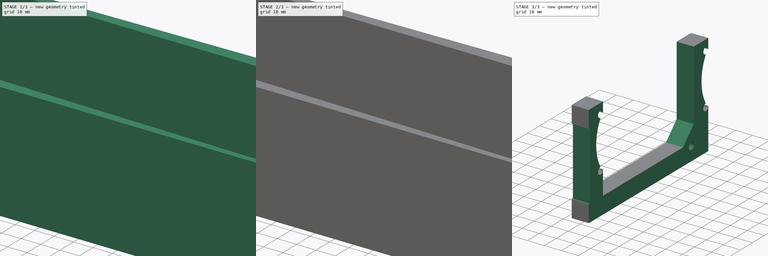
[diagram: build sequence overview — one tinted view per stage of 3, left to right]
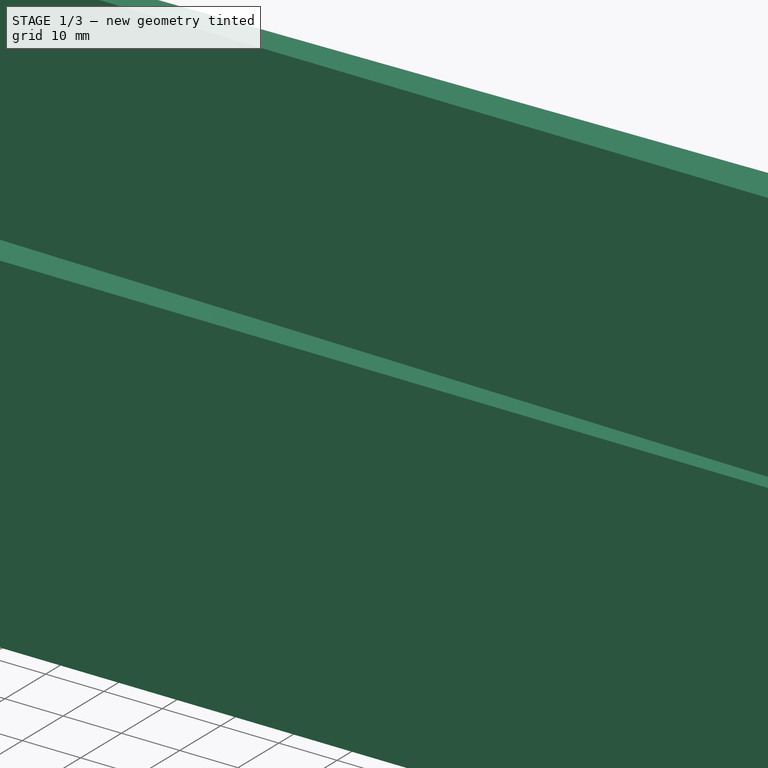
[diagram: stage 1 of 3 — iso view after this stage's code; geometry added in this stage tinted green]
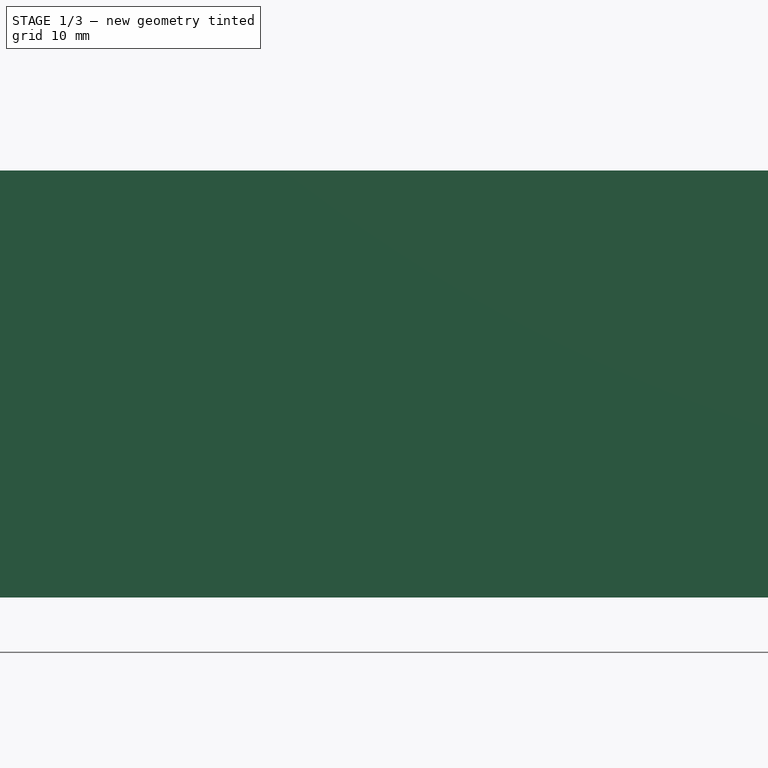
[diagram: stage 1 of 3 — front view after this stage's code; geometry added in this stage tinted green]
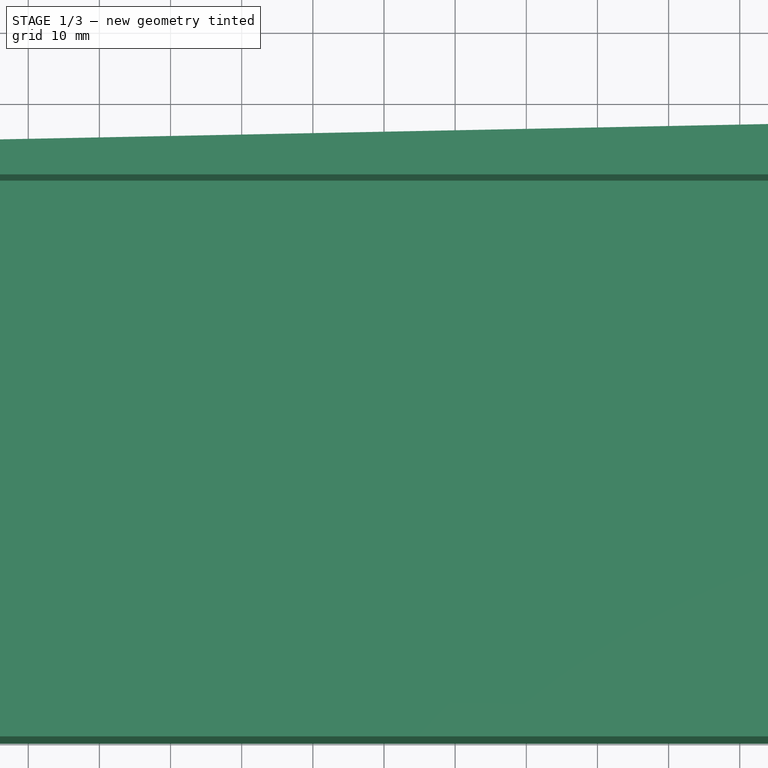
[diagram: stage 1 of 3 — top view after this stage's code; geometry added in this stage tinted green]
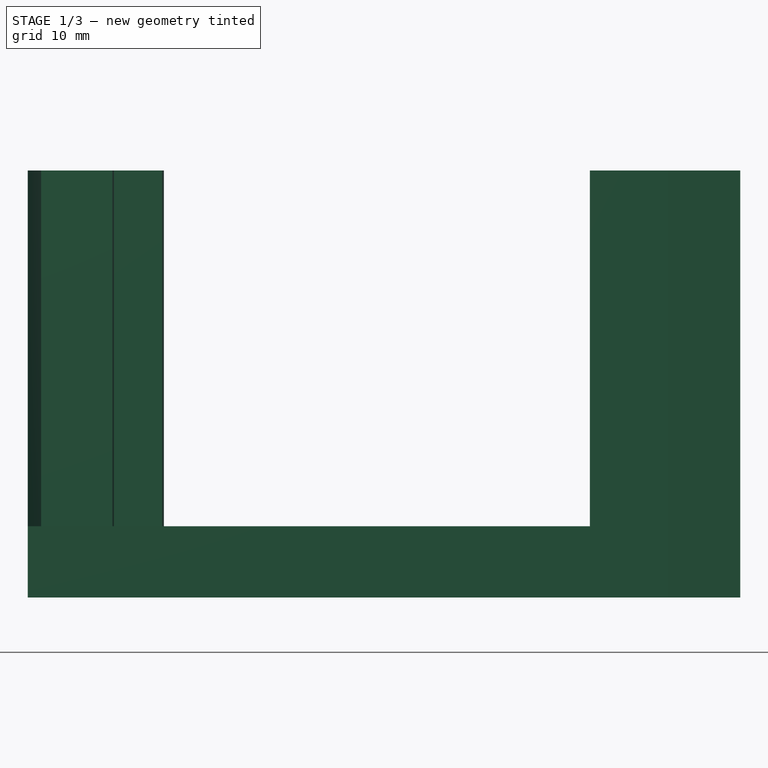
[diagram: stage 1 of 3 — right view after this stage's code; geometry added in this stage tinted green]
FCSTD DOCUMENT  (FreeCAD 0.19R)
Label: Support_Droit
License: All rights reserved
LicenseURL: http://en.wikipedia.org/wiki/All_rights_reserved
objects: Sketcher::SketchObject×6, PartDesign::Pocket×5, PartDesign::Pad×1, PartDesign::Body×1
note: 19 computed .brp shape members not serialized (recipe doc carries the construction recipe); baked Part::Feature solids carry a one-line shape summary decoded from their .brp

FEATURE [Sketcher::SketchObject] Sketch
  FullyConstrained = false
  MapMode = 5
  Support = -> [XY_Plane]
  sketch-geometry (14):
    g0: LineSegment StartX=450 StartY=0 StartZ=0 EndX=450 EndY=90 EndZ=0
    g1: LineSegment StartX=450 StartY=0 StartZ=0 EndX=-50 EndY=0 EndZ=0
    g2: LineSegment StartX=-50 StartY=80 StartZ=0 EndX=-50 EndY=0 EndZ=0
    g3: LineSegment StartX=-208.658 StartY=76.8268 StartZ=0 EndX=496.351 EndY=90.927 EndZ=0
    g4: LineSegment StartX=350 StartY=-44.981 StartZ=0 EndX=350 EndY=136.178 EndZ=0
    g5: LineSegment StartX=-6 StartY=80.88 StartZ=0 EndX=-6.24 EndY=92.88 EndZ=0
    g6: LineSegment StartX=-6.24 StartY=92.88 StartZ=0 EndX=5.76 EndY=93.12 EndZ=0
    g7: LineSegment StartX=5.76 StartY=93.12 StartZ=0 EndX=6 EndY=81.12 EndZ=0
    g8: LineSegment StartX=344 StartY=87.88 StartZ=0 EndX=343.76 EndY=99.88 EndZ=0
    g9: LineSegment StartX=343.76 StartY=99.88 StartZ=0 EndX=355.76 EndY=100.12 EndZ=0
    g10: LineSegment StartX=355.76 StartY=100.12 StartZ=0 EndX=356 EndY=88.12 EndZ=0
    g11: LineSegment StartX=-50 StartY=80 StartZ=0 EndX=-6 EndY=80.88 EndZ=0
    g12: LineSegment StartX=356 StartY=88.12 StartZ=0 EndX=450 EndY=90 EndZ=0
    g13: LineSegment StartX=344 StartY=87.88 StartZ=0 EndX=6 EndY=81.12 EndZ=0
  constraints (40):
    c: Vertical(g0)
    c: Coincident(g1,g0)
    c: PointOnObject(g1,g-1)
    c: Horizontal(g1)
    c: DistanceX(g1,g-1) = 50
    c: DistanceX(g1,g0) = 500
    c: Coincident(g2,g1)
    c: Vertical(g2)
    c: PointOnObject(g0,g3)
    c: PointOnObject(g2,g3)
    c: DistanceY(g0,g0) = 90
    c: DistanceY(g2,g2) = 80
    c: Vertical(g4)
    c: DistanceX(g-1,g4) = 350
    c: Coincident(g6,g5)
    c: Coincident(g7,g6)
    c: Coincident(g9,g8)
    c: Coincident(g10,g9)
    c: Coincident(g11,g2)
    c: Coincident(g12,g0)
    c: PointOnObject(g12,g3)
    c: Coincident(g13,g8)
    c: Coincident(g7,g13)
    c: Coincident(g11,g5)
    c: Coincident(g10,g12)
    c: PointOnObject(g8,g3)
    c: PointOnObject(g7,g3)
    c: PointOnObject(g5,g3)
    c: Parallel(g6,g9)
    c: Parallel(g9,g3)
    c: Perpendicular(g5,g11)
    c: Perpendicular(g13,g7)
    c: Perpendicular(g8,g13)
    c: Perpendicular(g12,g10)
    c: Equal(g6,g9)
    c: Equal(g9,g5)
    c: Equal(g5,g8)
    c: DistanceX(g6,g6) = 12
    c: DistanceX(g5,g-1) = 6
    c: DistanceX(g8,g4) = 6
FEATURE [PartDesign::Pad] Pad
  Direction = (1,1,1)
  Length = 60
  Length2 = 100
  Profile = -> Sketch
  Type = 0
FEATURE [Sketcher::SketchObject] Sketch001
  FullyConstrained = false
  MapMode = 5
  Placement = pos=(0,0,60) rot=(0,0,1;0rad)
  Support = -> [Pad]
  sketch-geometry (17):
    g0: LineSegment StartX=450 StartY=0 StartZ=0 EndX=-50 EndY=10 EndZ=0
    g1: LineSegment StartX=-50 StartY=10 StartZ=0 EndX=-50 EndY=79 EndZ=0
    g2: GeomPoint X=0 Y=79 Z=0
    g3: GeomPoint X=0 Y=9 Z=0
    g4: LineSegment StartX=350 StartY=158.708 StartZ=0 EndX=350 EndY=0 EndZ=0
    g5: GeomPoint X=350 Y=79.0004 Z=0
    g6: LineSegment StartX=-50 StartY=79 StartZ=0 EndX=450 EndY=79 EndZ=0
    g7: LineSegment StartX=-5.8 StartY=19.12 StartZ=0 EndX=6.2 EndY=18.88 EndZ=0
    g8: LineSegment StartX=344.2 StartY=12.12 StartZ=0 EndX=356.2 EndY=11.88 EndZ=0
    g9: LineSegment StartX=-5.8 StartY=19.12 StartZ=0 EndX=-6 EndY=9.12 EndZ=0
    g10: LineSegment StartX=6.2 StartY=18.88 StartZ=0 EndX=6 EndY=8.88 EndZ=0
    g11: LineSegment StartX=356.2 StartY=11.88 StartZ=0 EndX=356 EndY=1.88 EndZ=0
    g12: LineSegment StartX=-50 StartY=10 StartZ=0 EndX=-6 EndY=9.12 EndZ=0
    g13: LineSegment StartX=6 StartY=8.88 StartZ=0 EndX=344 EndY=2.12 EndZ=0
    g14: LineSegment StartX=356 StartY=1.88 StartZ=0 EndX=450 EndY=0 EndZ=0
    g15: LineSegment StartX=450 StartY=79 StartZ=0 EndX=450 EndY=0 EndZ=0
    g16: LineSegment StartX=344.2 StartY=12.12 StartZ=0 EndX=344 EndY=2.12 EndZ=0
  constraints (45):
    c: DistanceX(g0,g-1) = 50
    c: Coincident(g1,g0)
    c: Vertical(g1)
    c: PointOnObject(g2,g-2)
    c: PointOnObject(g3,g-2)
    c: PointOnObject(g3,g0)
    c: Vertical(g4)
    c: PointOnObject(g4,g-1)
    c: DistanceX(g-1,g4) = 350
    c: PointOnObject(g5,g4)
    c: Coincident(g6,g1)
    c: DistanceY(g-1,g1) = 10
    c: DistanceX(g-1,g0) = 450
    c: DistanceX(g6,g6) = 500
    c: Parallel(g0,g8)
    c: Parallel(g8,g7)
    c: Coincident(g12,g1)
    c: Coincident(g9,g12)
    c: Coincident(g7,g9)
    c: Coincident(g7,g10)
    c: Coincident(g10,g13)
    c: Perpendicular(g10,g7)
    c: Perpendicular(g7,g9)
    c: PointOnObject(g9,g0)
    c: PointOnObject(g10,g0)
    c: DistanceX(g9,g3) = 6
    c: DistanceX(g7,g7) = 12
    c: DistanceY(g9,g7) = 10
    c: Coincident(g8,g11)
    c: Perpendicular(g8,g11,g8) = 4.71239
    c: Equal(g7,g8)
    c: DistanceX(g13,g4) = 6
    c: PointOnObject(g13,g0)
    c: Coincident(g11,g14)
    c: PointOnObject(g11,g0)
    c: Coincident(g14,g0)
    c: Coincident(g15,g6)
    c: Coincident(g15,g14)
    c: PointOnObject(g14,g-1)
    c: Coincident(g16,g8)
    c: Coincident(g16,g13)
    c: Perpendicular(g8,g16)
    c: Equal(g16,g9)
    c: DistanceY(g1,g1) = 69
    c: Horizontal(g6)
FEATURE [PartDesign::Pocket] Pocket
  BaseFeature = -> Pad
  Length = 50
  Length2 = 100
  Profile = -> Sketch001
  Type = 0
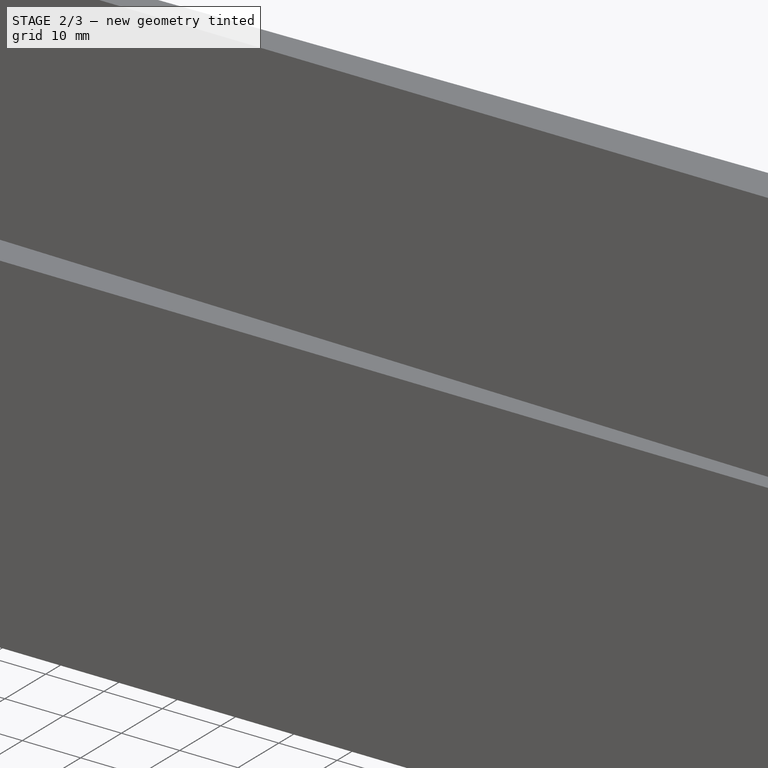
[diagram: stage 2 of 3 — iso view after this stage's code; geometry added in this stage tinted green]
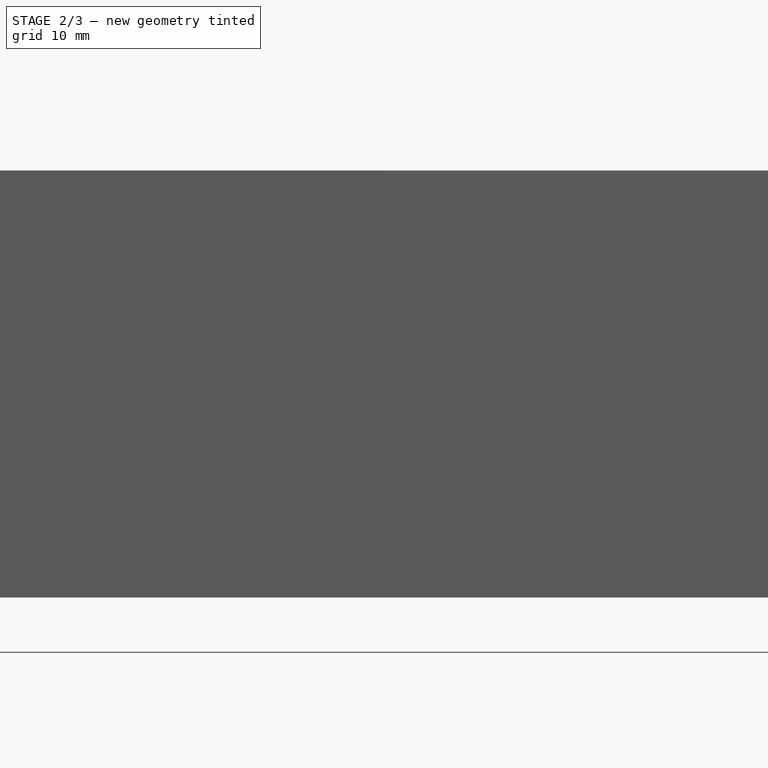
[diagram: stage 2 of 3 — front view after this stage's code; geometry added in this stage tinted green]
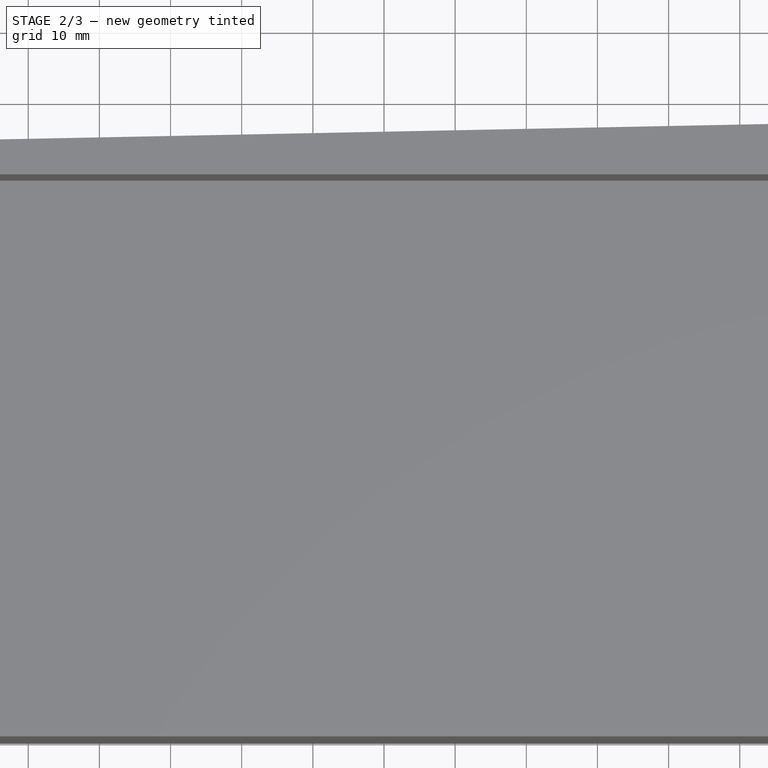
[diagram: stage 2 of 3 — top view after this stage's code; geometry added in this stage tinted green]
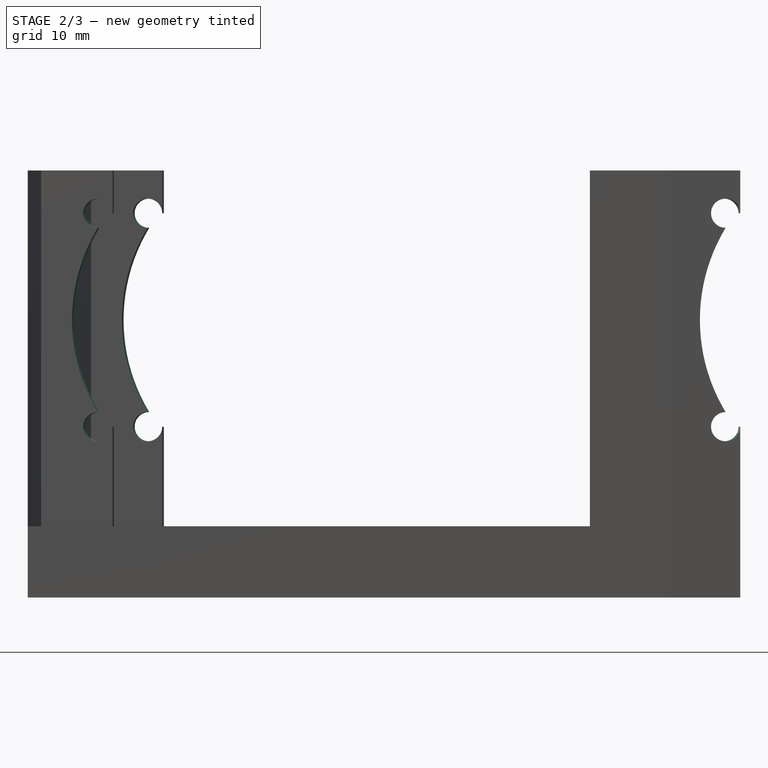
[diagram: stage 2 of 3 — right view after this stage's code; geometry added in this stage tinted green]
FEATURE [Sketcher::SketchObject] Sketch002
  ExternalGeometry = -> [Pocket]
  FullyConstrained = true
  MapMode = 5
  Placement = pos=(355.82,-7.1164,0) rot=(0.585047,0.573463,0.573463;2.08289rad)
  Support = -> [Pocket]
  sketch-geometry (4):
    g0: ArcOfCircle CenterX=16.9502 CenterY=54 CenterZ=0 NormalX=0 NormalY=0 NormalZ=1 AngleXU=0 Radius=2.05 StartAngle=0 EndAngle=4.71239
    g1: ArcOfCircle CenterX=16.9502 CenterY=24 CenterZ=0 NormalX=0 NormalY=0 NormalZ=1 AngleXU=0 Radius=2.05 StartAngle=1.5708 EndAngle=6.28319
    g2: LineSegment StartX=19.0002 StartY=24 StartZ=0 EndX=19.0002 EndY=54 EndZ=0
    g3: ArcOfCircle CenterX=38.3347 CenterY=39 CenterZ=0 NormalX=0 NormalY=0 NormalZ=1 AngleXU=0 Radius=25 StartAngle=2.59708 EndAngle=3.6861
  constraints (15):
    c: PointOnObject(g1,g-3)
    c: Horizontal(g1,g1)
    c: Horizontal(g0,g0)
    c: Coincident(g2,g1)
    c: Coincident(g0,g2)
    c: PointOnObject(g0,g-3)
    c: Coincident(g3,g1)
    c: Coincident(g3,g0)
    c: Vertical(g1,g1)
    c: Vertical(g1,g0)
    c: Vertical(g0,g0)
    c: Diameter(g0) = 4.1
    c: DistanceY(g1,g0) = 30
    c: DistanceY(g-1,g0) = 54
    c: Diameter(g3) = 50
FEATURE [PartDesign::Pocket] Pocket001
  BaseFeature = -> Pocket
  Length = 5
  Length2 = 100
  Profile = -> Sketch002
  Type = 1
FEATURE [Sketcher::SketchObject] Sketch003
  FullyConstrained = false
  MapMode = 5
  Placement = pos=(357.619,7.15239,0) rot=(0.569653,0.58116,0.58116;2.10598rad)
  Support = -> [Pocket001]
  sketch-geometry (4):
    g0: ArcOfCircle CenterX=90.9362 CenterY=54 CenterZ=0 NormalX=0 NormalY=0 NormalZ=1 AngleXU=0 Radius=2.05 StartAngle=1.6e-15 EndAngle=4.71239
    g1: ArcOfCircle CenterX=90.9362 CenterY=24 CenterZ=0 NormalX=0 NormalY=0 NormalZ=1 AngleXU=0 Radius=2.05 StartAngle=1.5708 EndAngle=6.28319
    g2: LineSegment StartX=92.9862 StartY=24 StartZ=0 EndX=92.9862 EndY=54 EndZ=0
    g3: ArcOfCircle CenterX=112.321 CenterY=39 CenterZ=0 NormalX=0 NormalY=0 NormalZ=1 AngleXU=0 Radius=25 StartAngle=2.59708 EndAngle=3.6861
  constraints (15):
    c: PointOnObject(g0,g-3)
    c: PointOnObject(g1,g-3)
    c: Coincident(g2,g1)
    c: Coincident(g2,g0)
    c: Vertical(g0,g0)
    c: Vertical(g0,g1)
    c: Vertical(g1,g1)
    c: Horizontal(g0,g0)
    c: Horizontal(g1,g1)
    c: DistanceY(g1,g0) = 30
    c: Diameter(g0) = 4.1
    c: DistanceY(g-1,g0) = 54
    c: Coincident(g3,g0)
    c: Coincident(g3,g1)
    c: Diameter(g3) = 50
FEATURE [PartDesign::Pocket] Pocket002
  BaseFeature = -> Pocket001
  Length = 5
  Length2 = 100
  Profile = -> Sketch003
  Type = 1
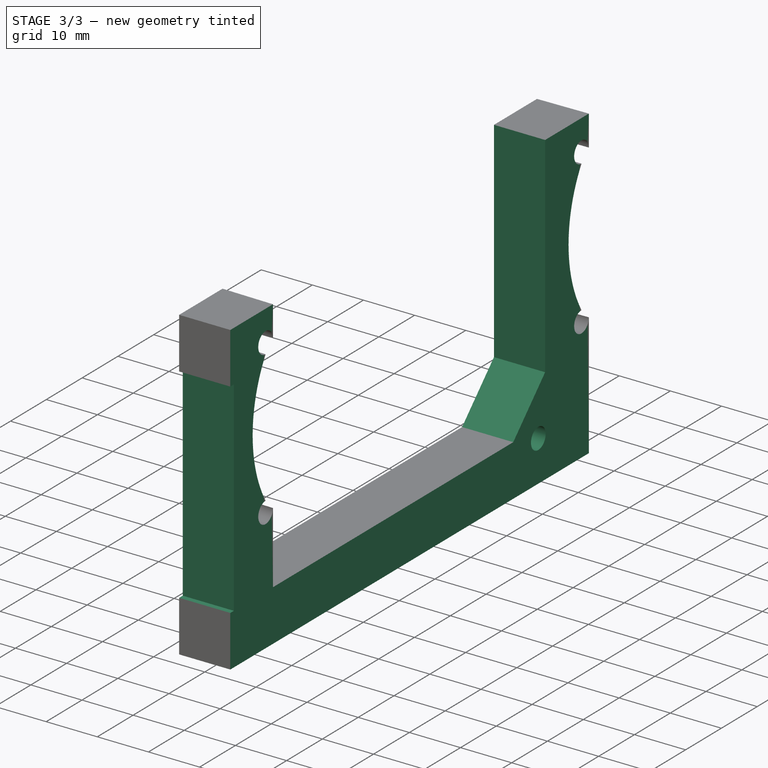
[diagram: stage 3 of 3 — iso view after this stage's code; geometry added in this stage tinted green]
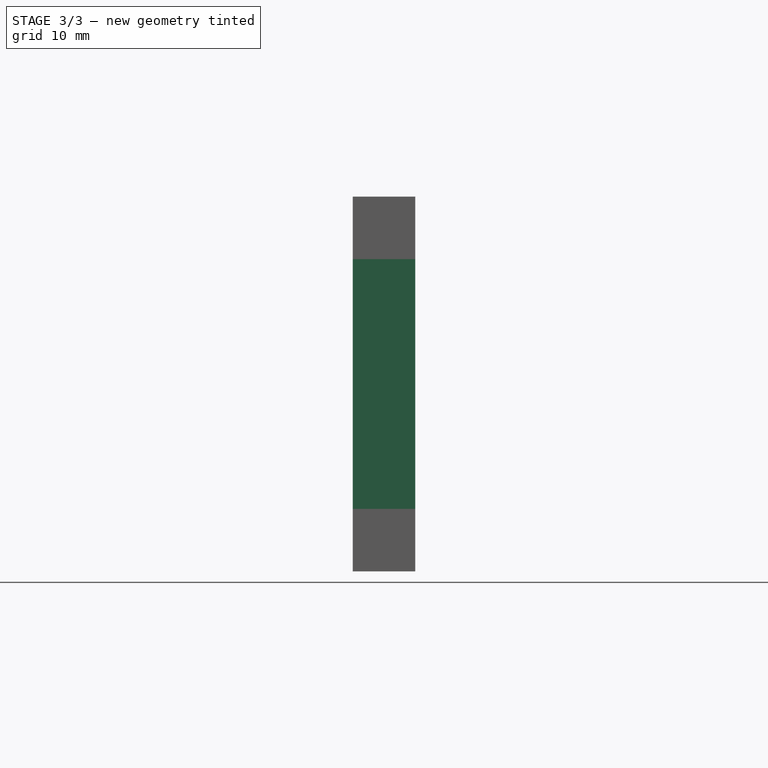
[diagram: stage 3 of 3 — front view after this stage's code; geometry added in this stage tinted green]
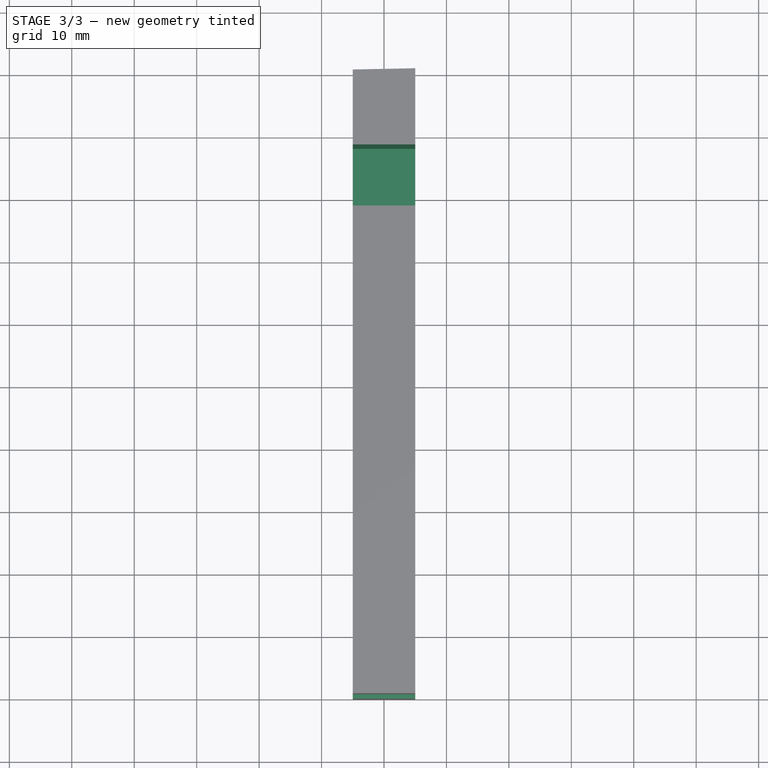
[diagram: stage 3 of 3 — top view after this stage's code; geometry added in this stage tinted green]
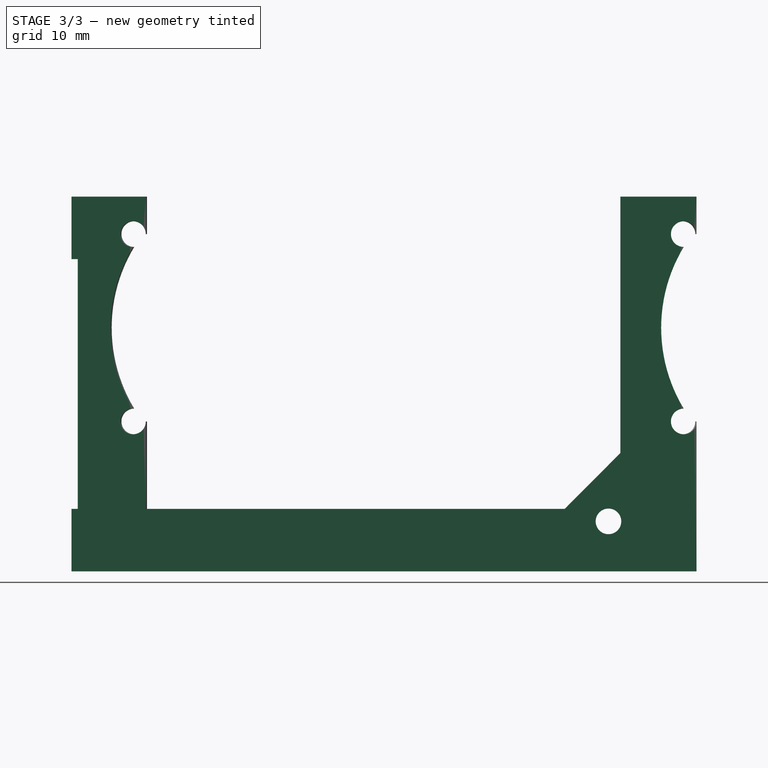
[diagram: stage 3 of 3 — right view after this stage's code; geometry added in this stage tinted green]
FEATURE [Sketcher::SketchObject] Sketch004
  FullyConstrained = false
  MapMode = 5
  Placement = pos=(0,0,60) rot=(0,0,1;0rad)
  Support = -> [Pocket002]
  sketch-geometry (9):
    g0: LineSegment StartX=-117.917 StartY=125.965 StartZ=0 EndX=345 EndY=125.965 EndZ=0
    g1: LineSegment StartX=345 StartY=125.965 StartZ=0 EndX=345 EndY=-26.5674 EndZ=0
    g2: LineSegment StartX=345 StartY=-26.5674 StartZ=0 EndX=-117.917 EndY=-26.5674 EndZ=0
    g3: LineSegment StartX=-117.917 StartY=-26.5674 StartZ=0 EndX=-117.917 EndY=125.965 EndZ=0
    g4: LineSegment StartX=355 StartY=128.273 StartZ=0 EndX=561.43 EndY=128.273 EndZ=0
    g5: LineSegment StartX=561.43 StartY=128.273 StartZ=0 EndX=561.43 EndY=-13.8747 EndZ=0
    g6: LineSegment StartX=561.43 StartY=-13.8747 StartZ=0 EndX=355 EndY=-13.8747 EndZ=0
    g7: LineSegment StartX=355 StartY=-13.8747 StartZ=0 EndX=355 EndY=128.273 EndZ=0
    g8: LineSegment StartX=350 StartY=-39.9056 StartZ=0 EndX=350 EndY=173.274 EndZ=0
  constraints (20):
    c: Coincident(g0,g1)
    c: Coincident(g1,g2)
    c: Coincident(g2,g3)
    c: Coincident(g3,g0)
    c: Horizontal(g0)
    c: Horizontal(g2)
    c: Vertical(g1)
    c: Vertical(g3)
    c: Coincident(g4,g5)
    c: Coincident(g5,g6)
    c: Coincident(g6,g7)
    c: Coincident(g7,g4)
    c: Horizontal(g4)
    c: Horizontal(g6)
    c: Vertical(g5)
    c: Vertical(g7)
    c: Vertical(g8)
    c: DistanceX(g-1,g8) = 350
    c: DistanceX(g8,g4) = 5
    c: DistanceX(g0,g8) = 5
FEATURE [PartDesign::Pocket] Pocket003
  BaseFeature = -> Pocket002
  Length = 5
  Length2 = 100
  Profile = -> Sketch004
  Type = 1
FEATURE [Sketcher::SketchObject] Sketch005
  ExternalGeometry = -> [Pocket003]
  FullyConstrained = false
  MapMode = 5
  Placement = pos=(345,0,0) rot=(0.57735,-0.57735,-0.57735;2.0944rad)
  Support = -> [Pocket003]
  sketch-geometry (9):
    g0: Circle CenterX=-86 CenterY=8 CenterZ=0 NormalX=0 NormalY=0 NormalZ=1 AngleXU=0 Radius=2.05
    g1: LineSegment StartX=-1 StartY=50 StartZ=0 EndX=0 EndY=50 EndZ=0
    g2: LineSegment StartX=0 StartY=50 StartZ=0 EndX=0 EndY=10 EndZ=0
    g3: LineSegment StartX=0 StartY=10 StartZ=0 EndX=-1 EndY=10 EndZ=0
    g4: LineSegment StartX=-1 StartY=10 StartZ=0 EndX=-1 EndY=50 EndZ=0
    g5: LineSegment StartX=-87.9048 StartY=60 StartZ=0 EndX=-79 EndY=60 EndZ=0
    g6: LineSegment StartX=-79 StartY=60 StartZ=0 EndX=-79 EndY=10 EndZ=0
    g7: LineSegment StartX=-87.9048 StartY=18.9585 StartZ=0 EndX=-87.9048 EndY=60 EndZ=0
    g8: LineSegment StartX=-87.9048 StartY=18.9585 StartZ=0 EndX=-79 EndY=10 EndZ=0
  constraints (24):
    c: DistanceX(g0,g-1) = 86
    c: DistanceY(g-1,g0) = 8
    c: Diameter(g0) = 4.1
    c: Coincident(g1,g2)
    c: Coincident(g2,g3)
    c: Coincident(g3,g4)
    c: Coincident(g4,g1)
    c: Horizontal(g1)
    c: Horizontal(g3)
    c: Vertical(g2)
    c: Vertical(g4)
    c: PointOnObject(g2,g-2)
    c: DistanceX(g1,g1) = 1
    c: DistanceY(g-1,g2) = 10
    c: DistanceY(g4,g4) = 40
    c: Coincident(g5,g6)
    c: Coincident(g7,g5)
    c: Horizontal(g5)
    c: Vertical(g7)
    c: DistanceX(g-3,g5) = 12
    c: Coincident(g-3,g5)
    c: Coincident(g6,g-4)
    c: Coincident(g8,g7)
    c: Coincident(g8,g6)
FEATURE [PartDesign::Pocket] Pocket004
  BaseFeature = -> Pocket003
  Length = 5
  Length2 = 100
  Profile = -> Sketch005
  Type = 1
FEATURE [PartDesign::Body] Body
  Group = -> [Sketch,Pad,Sketch001,Pocket,Sketch002,Pocket001,Sketch003,Pocket002,Sketch004,Pocket003,Sketch005,Pocket004]
  Origin = -> Origin
  Tip = -> Pocket004
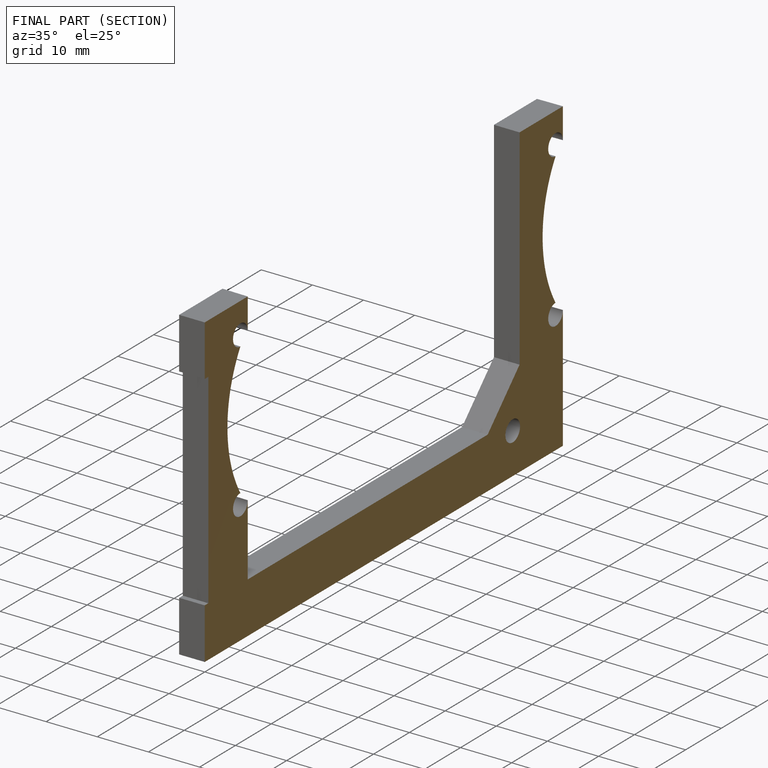
[diagram: finished part — half-section view (interior)]
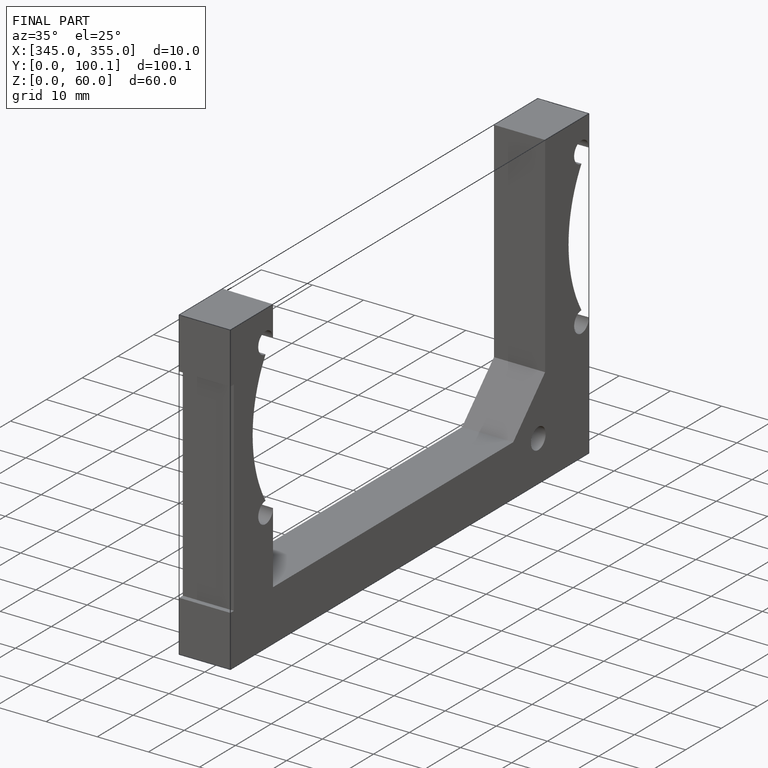
[diagram: finished part — iso view with bounding-box wireframe]
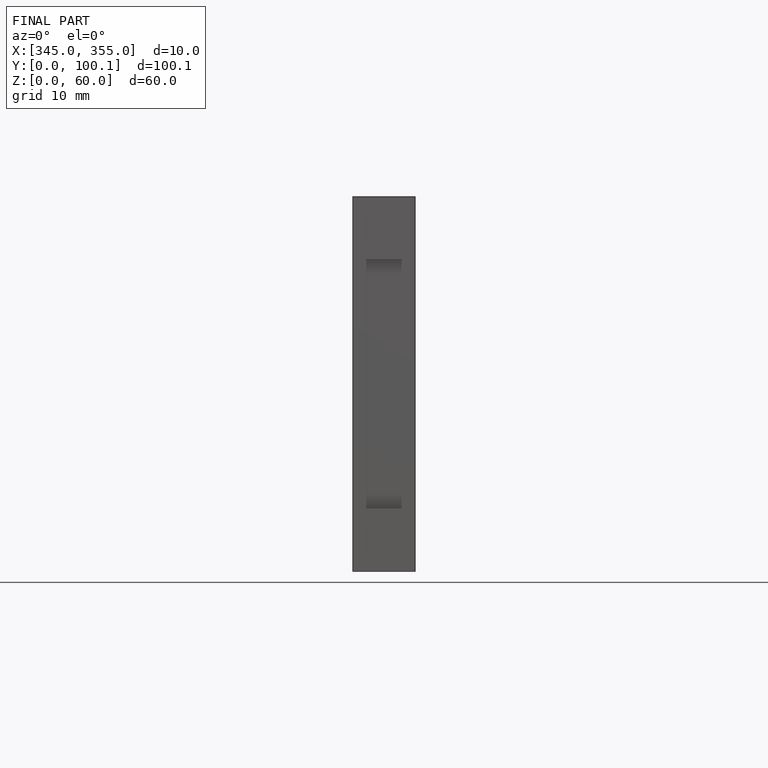
[diagram: finished part — front view with bounding-box wireframe]
